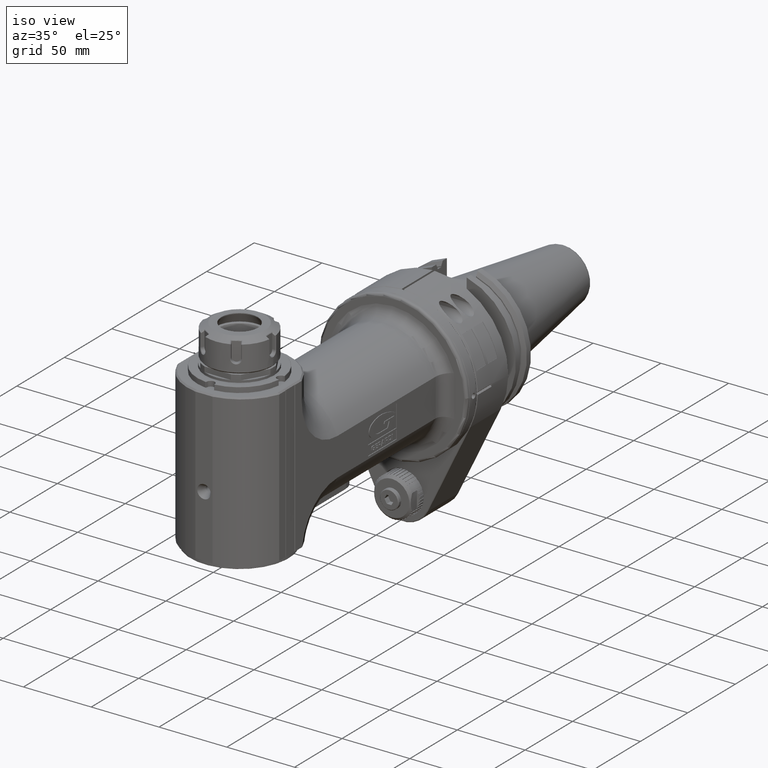
[diagram: clean part render]
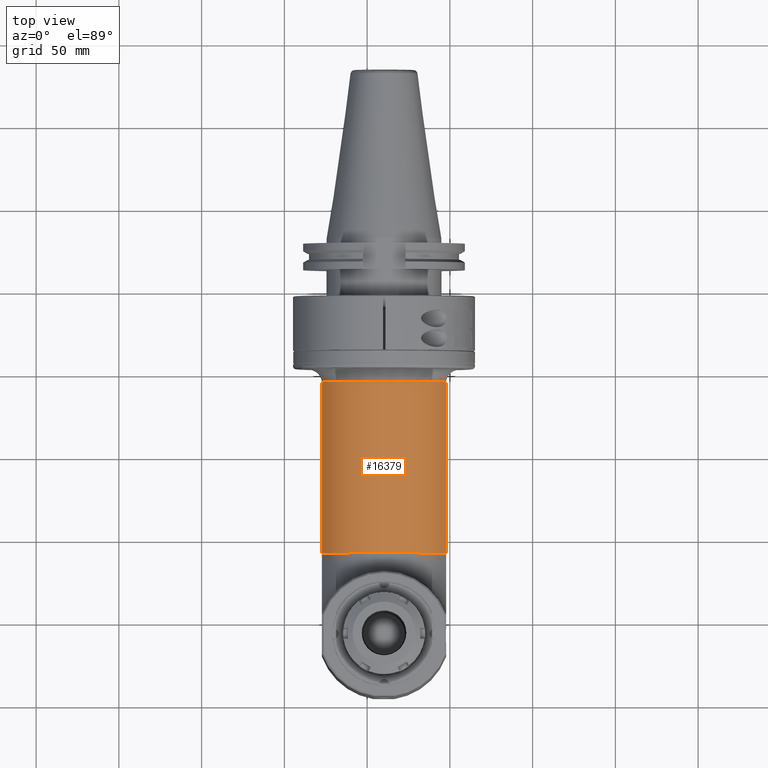
[diagram: tour spotlight — one face highlighted and labeled with its STEP entity id]
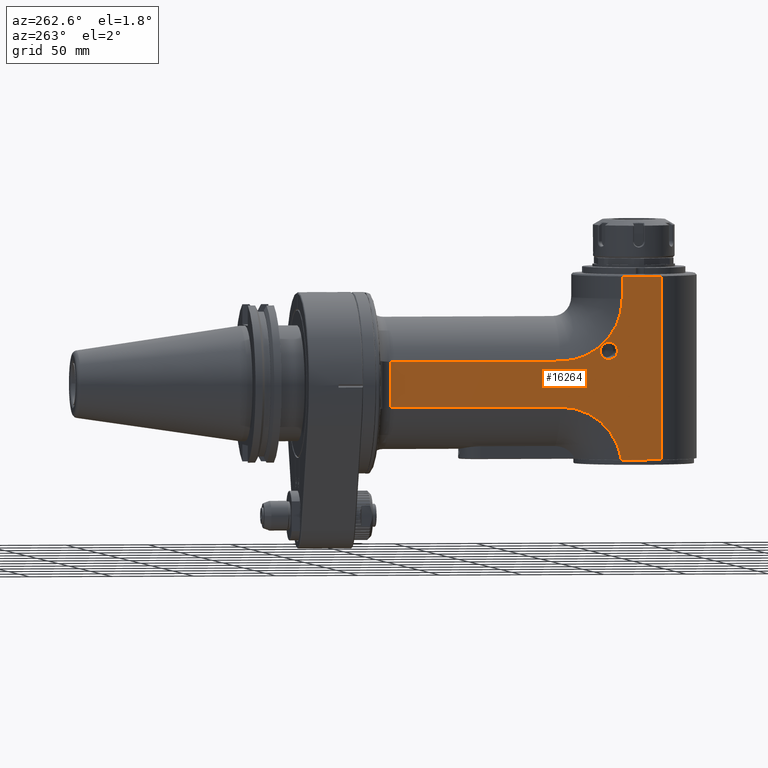
[diagram: tour spotlight — one face highlighted and labeled with its STEP entity id]
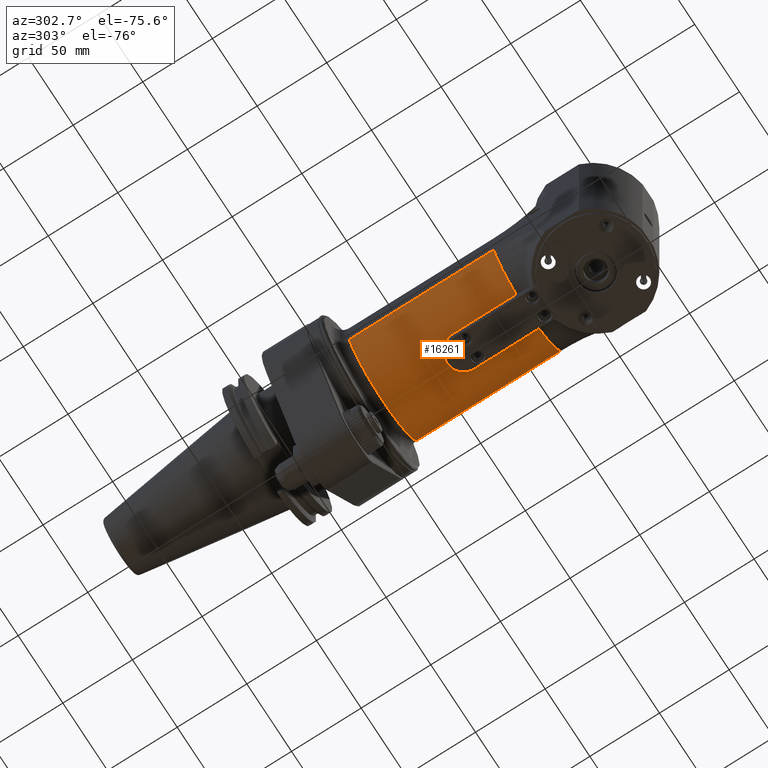
[diagram: tour spotlight — one face highlighted and labeled with its STEP entity id]
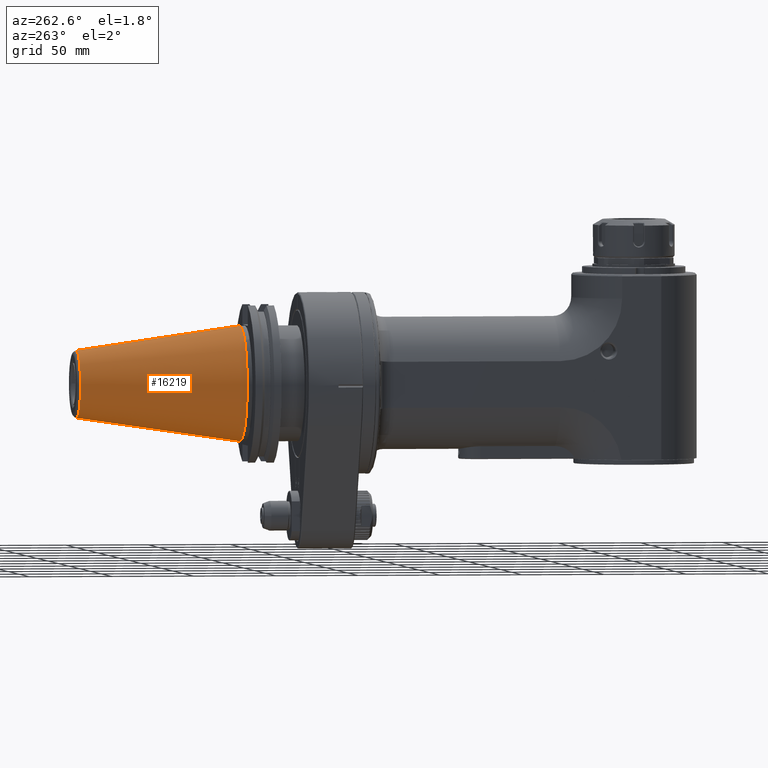
[diagram: tour spotlight — one face highlighted and labeled with its STEP entity id]
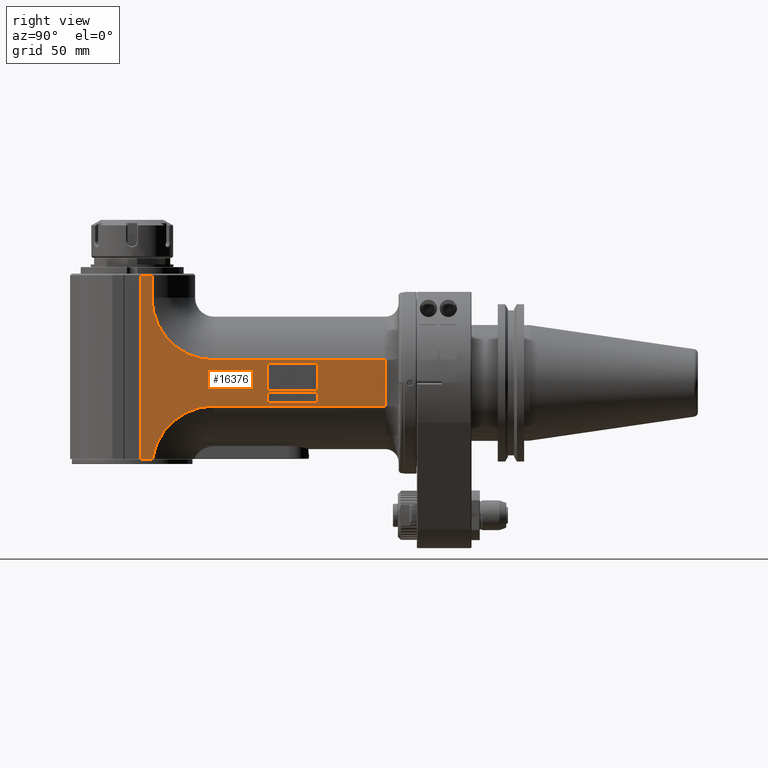
[diagram: tour spotlight — one face highlighted and labeled with its STEP entity id]
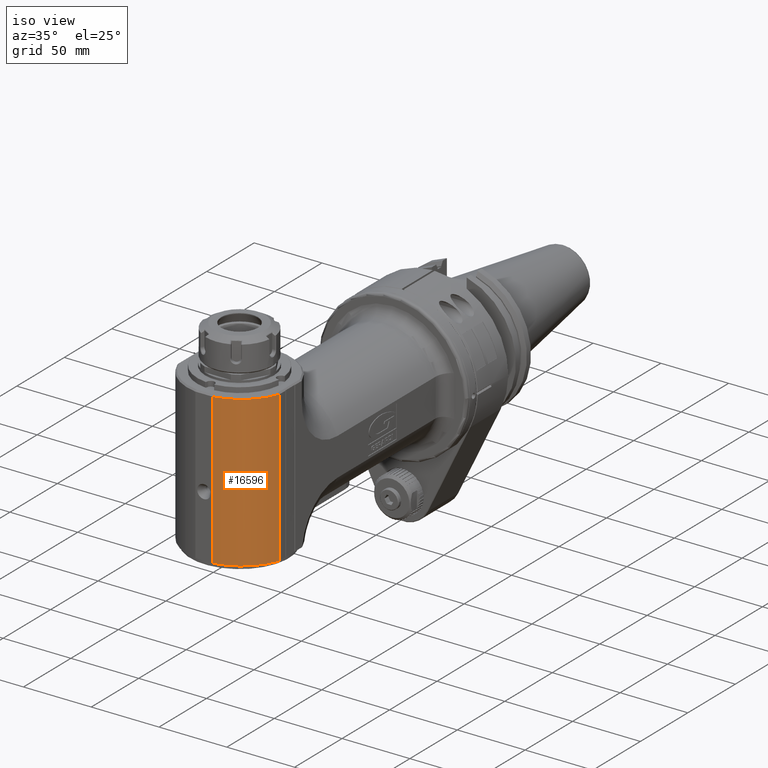
[diagram: tour spotlight — one face highlighted and labeled with its STEP entity id]
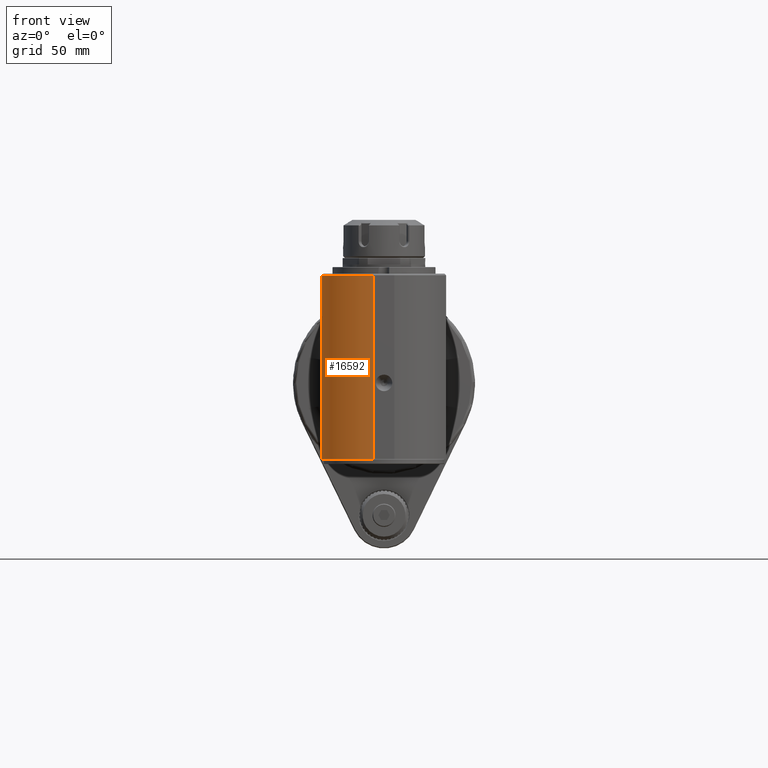
[diagram: tour spotlight — one face highlighted and labeled with its STEP entity id]
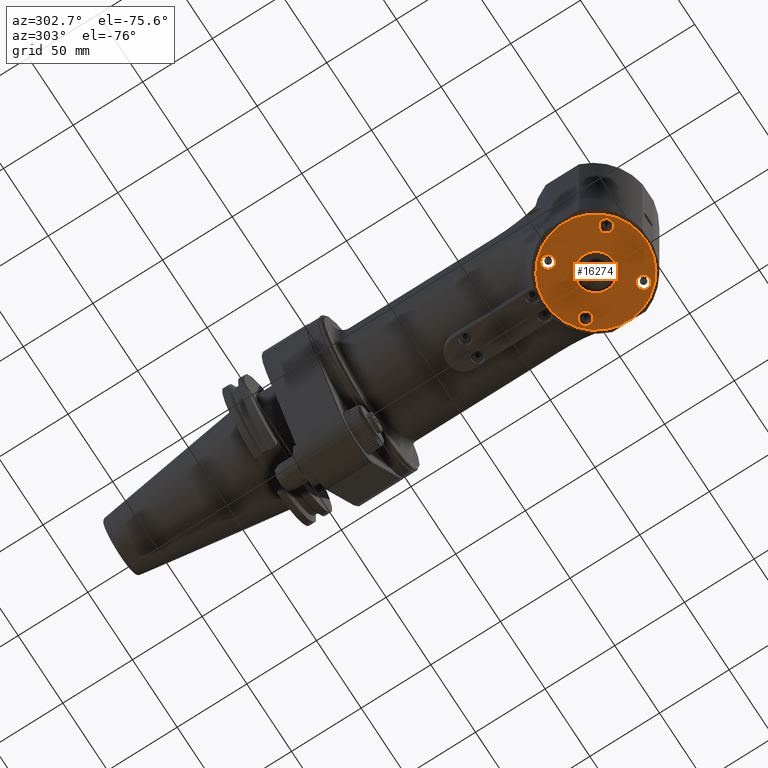
[diagram: tour spotlight — one face highlighted and labeled with its STEP entity id]
A machine part: a face-by-face anatomy tour. The part has 936 B-rep faces; the first image is the clean iso view, then the 8 largest visible faces are spotlighted one at a time (largest first), each with its STEP entity span.

Face 1 — top view, entity #16379. In plain terms, the highlighted cylindrical surface (partial cylindrical patch) has radius 40 mm, axis along (0, -1, -0).
Definition (entity closure, byte-faithful):
#1322=CIRCLE('',#17921,40.);
#1323=CIRCLE('',#17923,40.);
#1683=CYLINDRICAL_SURFACE('',#17922,40.);
#2293=FACE_OUTER_BOUND('',#3294,.T.);
#3294=EDGE_LOOP('',(#13401,#13402,#13403,#13404));
#4410=LINE('',#26817,#5732);
#4540=LINE('',#27791,#5862);
#5732=VECTOR('',#20885,103.5);
#5862=VECTOR('',#21531,103.5);
#7145=VERTEX_POINT('',#26814);
#7146=VERTEX_POINT('',#26816);
#7351=VERTEX_POINT('',#27788);
#7352=VERTEX_POINT('',#27790);
#9166=EDGE_CURVE('',#7146,#7145,#4410,.T.);
#9468=EDGE_CURVE('',#7351,#7352,#4540,.T.);
#9480=EDGE_CURVE('',#7352,#7145,#1322,.T.);
#9481=EDGE_CURVE('',#7351,#7146,#1323,.T.);
#13401=ORIENTED_EDGE('',*,*,#9468,.F.);
#13402=ORIENTED_EDGE('',*,*,#9481,.T.);
#13403=ORIENTED_EDGE('',*,*,#9166,.T.);
#13404=ORIENTED_EDGE('',*,*,#9480,.F.);
#16379=ADVANCED_FACE('',(#2293),#1683,.T.);
#17921=AXIS2_PLACEMENT_3D('',#27814,#21549,#21550);
#17922=AXIS2_PLACEMENT_3D('',#27815,#21551,#21552);
#17923=AXIS2_PLACEMENT_3D('',#27816,#21553,#21554);
#20885=DIRECTION('',(0.,-1.,0.));
#21531=DIRECTION('',(0.,-1.,0.));
#21549=DIRECTION('center_axis',(0.,-1.,0.));
#21550=DIRECTION('ref_axis',(0.937499999999992,0.,0.347985272676897));
#21551=DIRECTION('center_axis',(0.,-1.,0.));
#21552=DIRECTION('ref_axis',(-1.,0.,0.));
#21553=DIRECTION('center_axis',(0.,-1.,0.));
#21554=DIRECTION('ref_axis',(0.937499999999992,0.,0.347985272676897));
#26814=CARTESIAN_POINT('',(-37.5,49.5,13.91941090708));
#26816=CARTESIAN_POINT('',(-37.5,153.,13.91941090708));
#26817=CARTESIAN_POINT('',(-37.5,153.,13.91941090708));
#27788=CARTESIAN_POINT('',(37.5,153.,13.91941090708));
#27790=CARTESIAN_POINT('',(37.5,49.5,13.91941090708));
#27791=CARTESIAN_POINT('',(37.5,153.,13.91941090708));
#27814=CARTESIAN_POINT('Origin',(0.,49.5,0.));
#27815=CARTESIAN_POINT('Origin',(0.,206.85,0.));
#27816=CARTESIAN_POINT('Origin',(0.,153.,0.));

Face 2 — auxiliary view, entity #16264. In plain terms, the highlighted planar face has unit normal (1, 0, -0).
Definition (entity closure, byte-faithful):
#172=FACE_BOUND('',#3153,.T.);
#1181=CIRCLE('',#17656,37.58058909292);
#1182=CIRCLE('',#17658,37.58058909292);
#1183=CIRCLE('',#17659,5.250060322121);
#2178=FACE_OUTER_BOUND('',#3152,.T.);
#3152=EDGE_LOOP('',(#12806,#12807,#12808,#12809,#12810,#12811,#12812,#12813,
#12814));
#3153=EDGE_LOOP('',(#12815));
#4401=LINE('',#26754,#5723);
#4408=LINE('',#26811,#5730);
#4409=LINE('',#26813,#5731);
#4410=LINE('',#26817,#5732);
#4411=LINE('',#26818,#5733);
#4412=LINE('',#26820,#5734);
#4413=LINE('',#26821,#5735);
#5723=VECTOR('',#20860,103.5);
#5730=VECTOR('',#20881,10.);
#5731=VECTOR('',#20882,13.4999980109401);
#5732=VECTOR('',#20885,103.5);
#5733=VECTOR('',#20886,27.83882181415);
#5734=VECTOR('',#20887,24.24346873245);
#5735=VECTOR('',#20888,10.);
#7131=VERTEX_POINT('',#26751);
#7132=VERTEX_POINT('',#26753);
#7141=VERTEX_POINT('',#26792);
#7142=VERTEX_POINT('',#26809);
#7143=VERTEX_POINT('',#26810);
#7144=VERTEX_POINT('',#26812);
#7145=VERTEX_POINT('',#26814);
#7146=VERTEX_POINT('',#26816);
#7147=VERTEX_POINT('',#26819);
#7148=VERTEX_POINT('',#26822);
#9150=EDGE_CURVE('',#7132,#7131,#4401,.T.);
#9162=EDGE_CURVE('',#7131,#7141,#1181,.T.);
#9163=EDGE_CURVE('',#7142,#7143,#4408,.T.);
#9164=EDGE_CURVE('',#7144,#7142,#4409,.T.);
#9165=EDGE_CURVE('',#7145,#7144,#1182,.T.);
#9166=EDGE_CURVE('',#7146,#7145,#4410,.T.);
#9167=EDGE_CURVE('',#7132,#7146,#4411,.T.);
#9168=EDGE_CURVE('',#7141,#7147,#4412,.T.);
#9169=EDGE_CURVE('',#7143,#7147,#4413,.T.);
#9170=EDGE_CURVE('',#7148,#7148,#1183,.T.);
#12806=ORIENTED_EDGE('',*,*,#9163,.F.);
#12807=ORIENTED_EDGE('',*,*,#9164,.F.);
#12808=ORIENTED_EDGE('',*,*,#9165,.F.);
#12809=ORIENTED_EDGE('',*,*,#9166,.F.);
#12810=ORIENTED_EDGE('',*,*,#9167,.F.);
#12811=ORIENTED_EDGE('',*,*,#9150,.T.);
#12812=ORIENTED_EDGE('',*,*,#9162,.T.);
#12813=ORIENTED_EDGE('',*,*,#9168,.T.);
#12814=ORIENTED_EDGE('',*,*,#9169,.F.);
#12815=ORIENTED_EDGE('',*,*,#9170,.T.);
#15612=PLANE('',#17657);
#16264=ADVANCED_FACE('',(#2178,#172),#15612,.F.);
#17656=AXIS2_PLACEMENT_3D('',#26807,#20877,#20878);
#17657=AXIS2_PLACEMENT_3D('',#26808,#20879,#20880);
#17658=AXIS2_PLACEMENT_3D('',#26815,#20883,#20884);
#17659=AXIS2_PLACEMENT_3D('',#26823,#20889,#20890);
#20860=DIRECTION('',(0.,-1.,0.));
#20877=DIRECTION('center_axis',(1.,0.,0.));
#20878=DIRECTION('ref_axis',(0.,-1.210059133884E-14,1.));
#20879=DIRECTION('center_axis',(1.,0.,0.));
#20880=DIRECTION('ref_axis',(0.,1.,0.));
#20881=DIRECTION('',(0.,-1.,0.));
#20882=DIRECTION('',(1.22590523118099E-7,-4.54893183119996E-8,0.999999999999991));
#20883=DIRECTION('center_axis',(-1.,0.,0.));
#20884=DIRECTION('ref_axis',(0.,-2.609190007438E-14,-1.));
#20885=DIRECTION('',(0.,-1.,0.));
#20886=DIRECTION('',(0.,0.,1.));
#20887=DIRECTION('',(0.,-1.,0.));
#20888=DIRECTION('',(0.,0.,-1.));
#20889=DIRECTION('center_axis',(1.,0.,0.));
#20890=DIRECTION('ref_axis',(0.,1.,-1.353399184322E-14));
#26751=CARTESIAN_POINT('',(-37.5,49.5,-13.91941090708));
#26753=CARTESIAN_POINT('',(-37.5,153.,-13.91941090708));
#26754=CARTESIAN_POINT('',(-37.5,153.,-13.91941090708));
#26792=CARTESIAN_POINT('',(-37.5,12.32405782537,-46.));
#26807=CARTESIAN_POINT('Origin',(-37.5,49.5,-51.5));
#26808=CARTESIAN_POINT('Origin',(-37.5,-18.013,-67.1));
#26809=CARTESIAN_POINT('',(-37.5000031535924,11.9193903969521,64.9999925954276));
#26810=CARTESIAN_POINT('',(-37.5000115855401,-11.919346400708,64.9999768288556));
#26811=CARTESIAN_POINT('',(-37.5,-9.00649999999996,65.));
#26812=CARTESIAN_POINT('',(-37.5,11.91941090708,51.5));
#26813=CARTESIAN_POINT('',(-37.5,11.91941090708,51.5));
#26814=CARTESIAN_POINT('',(-37.5,49.5,13.91941090708));
#26815=CARTESIAN_POINT('Origin',(-37.5,49.5,51.5));
#26816=CARTESIAN_POINT('',(-37.5,153.,13.91941090708));
#26817=CARTESIAN_POINT('',(-37.5,153.,13.91941090708));
#26818=CARTESIAN_POINT('',(-37.5,153.,-13.91941090708));
#26819=CARTESIAN_POINT('',(-37.5,-11.91941090708,-46.));
#26820=CARTESIAN_POINT('',(-37.5,12.32405782537,-46.));
#26821=CARTESIAN_POINT('',(-37.5,-11.9194109070751,66.));
#26822=CARTESIAN_POINT('',(-37.4999999999983,20.,25.2500603221227));
#26823=CARTESIAN_POINT('Origin',(-37.5,20.,20.));

Face 3 — auxiliary view, entity #16261. In plain terms, the highlighted cylindrical surface (partial cylindrical patch) has radius 40 mm, axis along (0, -1, -0).
Definition (entity closure, byte-faithful):
#359=B_SPLINE_CURVE_WITH_KNOTS('',3,(#26763,#26764,#26765,#26766,#26767,
#26768,#26769,#26770,#26771,#26772,#26773,#26774,#26775,#26776,#26777,#26778,
#26779,#26780),.UNSPECIFIED.,.F.,.F.,(4,2,2,2,2,2,2,2,4),(-3.64051929255001,
-3.18538658776291,-2.73025388297581,-2.27525676462541,-1.820259646275,-1.3652625279246,
-0.9102654095742,-0.4551327047871,0.),.UNSPECIFIED.);
#1177=CIRCLE('',#17650,40.);
#1178=CIRCLE('',#17651,40.);
#1179=CIRCLE('',#17652,40.);
#1648=CYLINDRICAL_SURFACE('',#17649,40.);
#2175=FACE_OUTER_BOUND('',#3149,.T.);
#3149=EDGE_LOOP('',(#12788,#12789,#12790,#12791,#12792,#12793,#12794,#12795));
#4400=LINE('',#26750,#5722);
#4401=LINE('',#26754,#5723);
#4402=LINE('',#26758,#5724);
#4403=LINE('',#26762,#5725);
#5722=VECTOR('',#20857,45.5);
#5723=VECTOR('',#20860,103.5);
#5724=VECTOR('',#20863,103.5);
#5725=VECTOR('',#20866,45.5);
#7129=VERTEX_POINT('',#26748);
#7130=VERTEX_POINT('',#26749);
#7131=VERTEX_POINT('',#26751);
#7132=VERTEX_POINT('',#26753);
#7133=VERTEX_POINT('',#26755);
#7134=VERTEX_POINT('',#26757);
#7135=VERTEX_POINT('',#26759);
#7136=VERTEX_POINT('',#26761);
#9148=EDGE_CURVE('',#7129,#7130,#4400,.T.);
#9149=EDGE_CURVE('',#7131,#7130,#1177,.T.);
#9150=EDGE_CURVE('',#7132,#7131,#4401,.T.);
#9151=EDGE_CURVE('',#7132,#7133,#1178,.T.);
#9152=EDGE_CURVE('',#7133,#7134,#4402,.T.);
#9153=EDGE_CURVE('',#7135,#7134,#1179,.T.);
#9154=EDGE_CURVE('',#7136,#7135,#4403,.T.);
#9155=EDGE_CURVE('',#7136,#7129,#359,.T.);
#12788=ORIENTED_EDGE('',*,*,#9148,.T.);
#12789=ORIENTED_EDGE('',*,*,#9149,.F.);
#12790=ORIENTED_EDGE('',*,*,#9150,.F.);
#12791=ORIENTED_EDGE('',*,*,#9151,.T.);
#12792=ORIENTED_EDGE('',*,*,#9152,.T.);
#12793=ORIENTED_EDGE('',*,*,#9153,.F.);
#12794=ORIENTED_EDGE('',*,*,#9154,.F.);
#12795=ORIENTED_EDGE('',*,*,#9155,.T.);
#16261=ADVANCED_FACE('',(#2175),#1648,.T.);
#17649=AXIS2_PLACEMENT_3D('',#26747,#20855,#20856);
#17650=AXIS2_PLACEMENT_3D('',#26752,#20858,#20859);
#17651=AXIS2_PLACEMENT_3D('',#26756,#20861,#20862);
#17652=AXIS2_PLACEMENT_3D('',#26760,#20864,#20865);
#20855=DIRECTION('center_axis',(0.,-1.,0.));
#20856=DIRECTION('ref_axis',(-1.,0.,0.));
#20857=DIRECTION('',(0.,-1.,0.));
#20858=DIRECTION('center_axis',(0.,-1.,0.));
#20859=DIRECTION('ref_axis',(-0.937499999999992,0.,-0.347985272676897));
#20860=DIRECTION('',(0.,-1.,0.));
#20861=DIRECTION('center_axis',(0.,-1.,0.));
#20862=DIRECTION('ref_axis',(-0.937499999999992,0.,-0.347985272676897));
#20863=DIRECTION('',(0.,-1.,0.));
#20864=DIRECTION('center_axis',(0.,-1.,0.));
#20865=DIRECTION('ref_axis',(0.300000000000013,0.,-0.953939201416942));
#20866=DIRECTION('',(0.,-1.,0.));
#26747=CARTESIAN_POINT('Origin',(0.,206.85,0.));
#26748=CARTESIAN_POINT('',(-12.,95.,-38.15756805668));
#26749=CARTESIAN_POINT('',(-12.,49.5,-38.15756805668));
#26750=CARTESIAN_POINT('',(-12.,95.,-38.15756805668));
#26751=CARTESIAN_POINT('',(-37.5,49.5,-13.91941090708));
#26752=CARTESIAN_POINT('Origin',(0.,49.5,0.));
#26753=CARTESIAN_POINT('',(-37.5,153.,-13.91941090708));
#26754=CARTESIAN_POINT('',(-37.5,153.,-13.91941090708));
#26755=CARTESIAN_POINT('',(37.5,153.,-13.91941090708));
#26756=CARTESIAN_POINT('Origin',(0.,153.,0.));
#26757=CARTESIAN_POINT('',(37.5,49.5,-13.91941090708));
#26758=CARTESIAN_POINT('',(37.5,153.,-13.91941090708));
#26759=CARTESIAN_POINT('',(12.,49.5,-38.15756805668));
#26760=CARTESIAN_POINT('Origin',(0.,49.5,0.));
#26761=CARTESIAN_POINT('',(12.,95.,-38.15756805668));
#26762=CARTESIAN_POINT('',(12.,95.,-38.15756805668));
#26763=CARTESIAN_POINT('Ctrl Pts',(12.,95.,-38.1575680566778));
#26764=CARTESIAN_POINT('Ctrl Pts',(12.,96.517109015957,-38.1575680566778));
#26765=CARTESIAN_POINT('Ctrl Pts',(11.6948836643969,98.1284299417129,-38.2575175622995));
#26766=CARTESIAN_POINT('Ctrl Pts',(10.4674669046306,101.081902150865,-38.6113982441283));
#26767=CARTESIAN_POINT('Ctrl Pts',(9.5456212504585,102.424941498019,-38.8594700691606));
#26768=CARTESIAN_POINT('Ctrl Pts',(7.42525737886832,104.545305369609,-39.3197425045993));
#26769=CARTESIAN_POINT('Ctrl Pts',(6.08208967602489,105.467395628132,-39.5628477996032));
#26770=CARTESIAN_POINT('Ctrl Pts',(3.12815086992751,106.694992986043,-39.9052053355133));
#26771=CARTESIAN_POINT('Ctrl Pts',(1.51665706116801,107.,-40.));
#26772=CARTESIAN_POINT('Ctrl Pts',(-1.51665706116801,107.,-40.));
#26773=CARTESIAN_POINT('Ctrl Pts',(-3.12815086992754,106.694992986043,-39.9052053355133));
#26774=CARTESIAN_POINT('Ctrl Pts',(-6.08208967602491,105.467395628132,-39.5628477996032));
#26775=CARTESIAN_POINT('Ctrl Pts',(-7.42525737886832,104.545305369609,-39.3197425045993));
#26776=CARTESIAN_POINT('Ctrl Pts',(-9.5456212504585,102.424941498019,-38.8594700691606));
#26777=CARTESIAN_POINT('Ctrl Pts',(-10.4674669046306,101.081902150865,-38.6113982441283));
#26778=CARTESIAN_POINT('Ctrl Pts',(-11.6948836643969,98.1284299417129,-38.2575175622995));
#26779=CARTESIAN_POINT('Ctrl Pts',(-12.,96.517109015957,-38.1575680566778));
#26780=CARTESIAN_POINT('Ctrl Pts',(-12.,95.,-38.1575680566778));

Face 4 — auxiliary view, entity #16219. In plain terms, the highlighted conical surface has half-angle 8.3 deg.
Definition (entity closure, byte-faithful):
#683=CONICAL_SURFACE('',#17567,27.65552420652,0.144862327915529);
#1135=CIRCLE('',#17564,20.38604841304);
#1137=CIRCLE('',#17566,20.38604841304);
#1138=CIRCLE('',#17568,34.925);
#2133=FACE_OUTER_BOUND('',#3101,.T.);
#3101=EDGE_LOOP('',(#12584,#12585,#12586,#12587,#12588));
#4349=LINE('',#26283,#5671);
#5671=VECTOR('',#20644,27.65552420652);
#7057=VERTEX_POINT('',#26275);
#7058=VERTEX_POINT('',#26276);
#7059=VERTEX_POINT('',#26281);
#9041=EDGE_CURVE('',#7057,#7058,#1135,.T.);
#9043=EDGE_CURVE('',#7058,#7057,#1137,.T.);
#9044=EDGE_CURVE('',#7059,#7059,#1138,.T.);
#9045=EDGE_CURVE('',#7059,#7058,#4349,.T.);
#12584=ORIENTED_EDGE('',*,*,#9044,.F.);
#12585=ORIENTED_EDGE('',*,*,#9045,.T.);
#12586=ORIENTED_EDGE('',*,*,#9043,.T.);
#12587=ORIENTED_EDGE('',*,*,#9041,.T.);
#12588=ORIENTED_EDGE('',*,*,#9045,.F.);
#16219=ADVANCED_FACE('',(#2133),#683,.T.);
#17564=AXIS2_PLACEMENT_3D('',#26277,#20634,#20635);
#17566=AXIS2_PLACEMENT_3D('',#26279,#20638,#20639);
#17567=AXIS2_PLACEMENT_3D('',#26280,#20640,#20641);
#17568=AXIS2_PLACEMENT_3D('',#26282,#20642,#20643);
#20634=DIRECTION('center_axis',(0.,-1.,0.));
#20635=DIRECTION('ref_axis',(0.00108059556212205,0.,0.999999416156445));
#20638=DIRECTION('center_axis',(0.,-1.,0.));
#20639=DIRECTION('ref_axis',(0.00108059556212205,0.,0.999999416156445));
#20640=DIRECTION('center_axis',(0.,-1.,0.));
#20641=DIRECTION('ref_axis',(0.,0.,1.));
#20642=DIRECTION('center_axis',(0.,-1.,0.));
#20643=DIRECTION('ref_axis',(0.,0.,-1.));
#20644=DIRECTION('',(-1.76785359492914E-17,0.989525789068969,0.144356201000973));
#26275=CARTESIAN_POINT('',(0.0220290734443338,167.6608905025,20.386036510777));
#26276=CARTESIAN_POINT('',(2.49657089362968E-15,167.660890502501,-20.3860484130436));
#26277=CARTESIAN_POINT('Origin',(0.,167.6608905025,-1.480248809205E-14));
#26279=CARTESIAN_POINT('Origin',(0.,167.6608905025,-1.480248809205E-14));
#26280=CARTESIAN_POINT('Origin',(0.,117.83044525125,-1.480248809205E-14));
#26281=CARTESIAN_POINT('',(0.,68.,-34.925));
#26282=CARTESIAN_POINT('Origin',(0.,68.,-1.480248809205E-14));
#26283=CARTESIAN_POINT('',(3.38682491982569E-15,117.83044525125,-27.65552420652));

Face 5 — right view, entity #16376. In plain terms, the highlighted planar face has unit normal (1, 0, -0).
Definition (entity closure, byte-faithful):
#197=FACE_BOUND('',#3290,.T.);
#198=FACE_BOUND('',#3291,.T.);
#1319=CIRCLE('',#17915,37.58058909292);
#1320=CIRCLE('',#17917,37.58058909292);
#2290=FACE_OUTER_BOUND('',#3289,.T.);
#3289=EDGE_LOOP('',(#13376,#13377,#13378,#13379,#13380,#13381,#13382,#13383,
#13384));
#3290=EDGE_LOOP('',(#13385,#13386,#13387,#13388));
#3291=EDGE_LOOP('',(#13389,#13390,#13391,#13392));
#4402=LINE('',#26758,#5724);
#4426=LINE('',#26886,#5748);
#4433=LINE('',#26907,#5755);
#4436=LINE('',#26932,#5758);
#4539=LINE('',#27789,#5861);
#4540=LINE('',#27791,#5862);
#4541=LINE('',#27794,#5863);
#4542=LINE('',#27797,#5864);
#4543=LINE('',#27799,#5865);
#4544=LINE('',#27801,#5866);
#4545=LINE('',#27802,#5867);
#4546=LINE('',#27805,#5868);
#4547=LINE('',#27807,#5869);
#4548=LINE('',#27809,#5870);
#4549=LINE('',#27810,#5871);
#5724=VECTOR('',#20863,103.5);
#5748=VECTOR('',#20935,10.);
#5755=VECTOR('',#20944,111.);
#5758=VECTOR('',#20953,7.324057825372);
#5861=VECTOR('',#21530,27.83882181415);
#5862=VECTOR('',#21531,103.5);
#5863=VECTOR('',#21534,13.4999981228601);
#5864=VECTOR('',#21535,16.51976851128);
#5865=VECTOR('',#21536,30.01663922375);
#5866=VECTOR('',#21537,16.51976851128);
#5867=VECTOR('',#21538,30.01663922375);
#5868=VECTOR('',#21539,6.349203301807);
#5869=VECTOR('',#21540,30.04358740776);
#5870=VECTOR('',#21541,6.349203301807);
#5871=VECTOR('',#21542,30.04358740776);
#7133=VERTEX_POINT('',#26755);
#7134=VERTEX_POINT('',#26757);
#7152=VERTEX_POINT('',#26837);
#7172=VERTEX_POINT('',#26883);
#7179=VERTEX_POINT('',#26904);
#7185=VERTEX_POINT('',#26917);
#7351=VERTEX_POINT('',#27788);
#7352=VERTEX_POINT('',#27790);
#7353=VERTEX_POINT('',#27792);
#7354=VERTEX_POINT('',#27795);
#7355=VERTEX_POINT('',#27796);
#7356=VERTEX_POINT('',#27798);
#7357=VERTEX_POINT('',#27800);
#7358=VERTEX_POINT('',#27803);
#7359=VERTEX_POINT('',#27804);
#7360=VERTEX_POINT('',#27806);
#7361=VERTEX_POINT('',#27808);
#9152=EDGE_CURVE('',#7133,#7134,#4402,.T.);
#9198=EDGE_CURVE('',#7172,#7152,#4426,.T.);
#9206=EDGE_CURVE('',#7179,#7172,#4433,.T.);
#9212=EDGE_CURVE('',#7185,#7179,#4436,.T.);
#9466=EDGE_CURVE('',#7134,#7185,#1319,.T.);
#9467=EDGE_CURVE('',#7133,#7351,#4539,.T.);
#9468=EDGE_CURVE('',#7351,#7352,#4540,.T.);
#9469=EDGE_CURVE('',#7352,#7353,#1320,.T.);
#9470=EDGE_CURVE('',#7353,#7152,#4541,.T.);
#9471=EDGE_CURVE('',#7354,#7355,#4542,.T.);
#9472=EDGE_CURVE('',#7356,#7354,#4543,.T.);
#9473=EDGE_CURVE('',#7357,#7356,#4544,.T.);
#9474=EDGE_CURVE('',#7355,#7357,#4545,.T.);
#9475=EDGE_CURVE('',#7358,#7359,#4546,.T.);
#9476=EDGE_CURVE('',#7360,#7358,#4547,.T.);
#9477=EDGE_CURVE('',#7361,#7360,#4548,.T.);
#9478=EDGE_CURVE('',#7359,#7361,#4549,.T.);
#13376=ORIENTED_EDGE('',*,*,#9206,.F.);
#13377=ORIENTED_EDGE('',*,*,#9212,.F.);
#13378=ORIENTED_EDGE('',*,*,#9466,.F.);
#13379=ORIENTED_EDGE('',*,*,#9152,.F.);
#13380=ORIENTED_EDGE('',*,*,#9467,.T.);
#13381=ORIENTED_EDGE('',*,*,#9468,.T.);
#13382=ORIENTED_EDGE('',*,*,#9469,.T.);
#13383=ORIENTED_EDGE('',*,*,#9470,.T.);
#13384=ORIENTED_EDGE('',*,*,#9198,.F.);
#13385=ORIENTED_EDGE('',*,*,#9471,.F.);
#13386=ORIENTED_EDGE('',*,*,#9472,.F.);
#13387=ORIENTED_EDGE('',*,*,#9473,.F.);
#13388=ORIENTED_EDGE('',*,*,#9474,.F.);
#13389=ORIENTED_EDGE('',*,*,#9475,.F.);
#13390=ORIENTED_EDGE('',*,*,#9476,.F.);
#13391=ORIENTED_EDGE('',*,*,#9477,.F.);
#13392=ORIENTED_EDGE('',*,*,#9478,.F.);
#15644=PLANE('',#17916);
#16376=ADVANCED_FACE('',(#2290,#197,#198),#15644,.T.);
#17915=AXIS2_PLACEMENT_3D('',#27786,#21526,#21527);
#17916=AXIS2_PLACEMENT_3D('',#27787,#21528,#21529);
#17917=AXIS2_PLACEMENT_3D('',#27793,#21532,#21533);
#20863=DIRECTION('',(0.,-1.,0.));
#20935=DIRECTION('',(0.,1.,0.));
#20944=DIRECTION('',(0.,0.,1.));
#20953=DIRECTION('',(0.,-1.,0.));
#21526=DIRECTION('center_axis',(1.,0.,0.));
#21527=DIRECTION('ref_axis',(0.,-1.210059133884E-14,1.));
#21528=DIRECTION('center_axis',(1.,0.,0.));
#21529=DIRECTION('ref_axis',(0.,1.,0.));
#21530=DIRECTION('',(0.,0.,1.));
#21531=DIRECTION('',(0.,-1.,0.));
#21532=DIRECTION('center_axis',(-1.,0.,0.));
#21533=DIRECTION('ref_axis',(0.,0.,-1.));
#21534=DIRECTION('',(-1.30358121104699E-7,-4.83867656897595E-8,0.99999999999999));
#21535=DIRECTION('',(0.,0.,-1.));
#21536=DIRECTION('',(0.,-1.,0.));
#21537=DIRECTION('',(0.,0.,1.));
#21538=DIRECTION('',(0.,1.,0.));
#21539=DIRECTION('',(0.,0.,-1.));
#21540=DIRECTION('',(0.,-1.,0.));
#21541=DIRECTION('',(0.,0.,1.));
#21542=DIRECTION('',(0.,1.,0.));
#26755=CARTESIAN_POINT('',(37.5,153.,-13.91941090708));
#26757=CARTESIAN_POINT('',(37.5,49.5,-13.91941090708));
#26758=CARTESIAN_POINT('',(37.5,153.,-13.91941090708));
#26837=CARTESIAN_POINT('',(37.5000031227525,11.9193903815777,64.9999926020201));
#26883=CARTESIAN_POINT('',(37.5,5.,65.));
#26886=CARTESIAN_POINT('',(37.5,-9.0065,65.));
#26904=CARTESIAN_POINT('',(37.5,5.,-46.));
#26907=CARTESIAN_POINT('',(37.5,5.,-46.));
#26917=CARTESIAN_POINT('',(37.5,12.32405782537,-46.));
#26932=CARTESIAN_POINT('',(37.5,12.32405782537,-46.));
#27786=CARTESIAN_POINT('Origin',(37.5,49.5,-51.5));
#27787=CARTESIAN_POINT('Origin',(37.5,-18.013,-67.1));
#27788=CARTESIAN_POINT('',(37.5,153.,13.91941090708));
#27789=CARTESIAN_POINT('',(37.5,153.,-13.91941090708));
#27790=CARTESIAN_POINT('',(37.5,49.5,13.91941090708));
#27791=CARTESIAN_POINT('',(37.5,153.,13.91941090708));
#27792=CARTESIAN_POINT('',(37.5,11.91941090708,51.5));
#27793=CARTESIAN_POINT('Origin',(37.5,49.5,51.5));
#27794=CARTESIAN_POINT('',(37.5,11.91941090708,51.5));
#27795=CARTESIAN_POINT('',(37.5,81.98336077625,11.90006998381));
#27796=CARTESIAN_POINT('',(37.5,81.98336077625,-4.619698527469));
#27797=CARTESIAN_POINT('',(37.5,81.98336077625,11.90006998381));
#27798=CARTESIAN_POINT('',(37.5,112.,11.90006998381));
#27799=CARTESIAN_POINT('',(37.5,112.,11.90006998381));
#27800=CARTESIAN_POINT('',(37.5,112.,-4.619698527469));
#27801=CARTESIAN_POINT('',(37.5,112.,-4.619698527469));
#27802=CARTESIAN_POINT('',(37.5,81.98336077625,-4.619698527469));
#27803=CARTESIAN_POINT('',(37.5,81.94167288687,-5.750796698193));
#27804=CARTESIAN_POINT('',(37.5,81.94167288687,-12.1));
#27805=CARTESIAN_POINT('',(37.5,81.94167288687,-5.750796698193));
#27806=CARTESIAN_POINT('',(37.5,111.9852602946,-5.750796698193));
#27807=CARTESIAN_POINT('',(37.5,111.9852602946,-5.750796698193));
#27808=CARTESIAN_POINT('',(37.5,111.9852602946,-12.1));
#27809=CARTESIAN_POINT('',(37.5,111.9852602946,-12.1));
#27810=CARTESIAN_POINT('',(37.5,81.94167288687,-12.1));

Face 6 — iso view, entity #16596. In plain terms, the highlighted cylindrical surface (partial cylindrical patch) has radius 40 mm, axis along (-0, 0, -1).
Definition (entity closure, byte-faithful):
#1198=CIRCLE('',#17680,40.);
#1425=CIRCLE('',#18248,40.);
#1717=CYLINDRICAL_SURFACE('',#18249,40.);
#2510=FACE_OUTER_BOUND('',#3534,.T.);
#3534=EDGE_LOOP('',(#14511,#14512,#14513,#14514));
#4881=LINE('',#29708,#6203);
#4882=LINE('',#29709,#6204);
#6203=VECTOR('',#22538,10.);
#6204=VECTOR('',#22539,10.);
#7174=VERTEX_POINT('',#26887);
#7190=VERTEX_POINT('',#26941);
#7191=VERTEX_POINT('',#26943);
#7716=VERTEX_POINT('',#29697);
#9218=EDGE_CURVE('',#7191,#7190,#1198,.T.);
#10025=EDGE_CURVE('',#7174,#7716,#1425,.T.);
#10026=EDGE_CURVE('',#7716,#7191,#4881,.T.);
#10027=EDGE_CURVE('',#7174,#7190,#4882,.T.);
#14511=ORIENTED_EDGE('',*,*,#10025,.T.);
#14512=ORIENTED_EDGE('',*,*,#10026,.T.);
#14513=ORIENTED_EDGE('',*,*,#9218,.T.);
#14514=ORIENTED_EDGE('',*,*,#10027,.F.);
#16596=ADVANCED_FACE('',(#2510),#1717,.T.);
#17680=AXIS2_PLACEMENT_3D('',#26944,#20959,#20960);
#18248=AXIS2_PLACEMENT_3D('',#29706,#22534,#22535);
#18249=AXIS2_PLACEMENT_3D('',#29707,#22536,#22537);
#20959=DIRECTION('center_axis',(0.,0.,1.));
#20960=DIRECTION('ref_axis',(0.1576190026615,-0.987499999999997,0.));
#22534=DIRECTION('center_axis',(0.,0.,-1.));
#22535=DIRECTION('ref_axis',(0.937499999999992,-0.347985272676897,0.));
#22536=DIRECTION('center_axis',(0.,0.,-1.));
#22537=DIRECTION('ref_axis',(-1.,0.,0.));
#22538=DIRECTION('',(0.,0.,-1.));
#22539=DIRECTION('',(0.,0.,-1.));
#26887=CARTESIAN_POINT('',(37.4999928846129,-11.919401207414,64.9999776133729));
#26941=CARTESIAN_POINT('',(37.5,-11.91941090708,-46.));
#26943=CARTESIAN_POINT('',(6.304760106459,-37.5,-46.));
#26944=CARTESIAN_POINT('Origin',(0.,2.,-46.));
#29697=CARTESIAN_POINT('',(6.30476010498658,-37.4999901119275,64.9999746119677));
#29706=CARTESIAN_POINT('Origin',(3.907985146681E-13,1.999999999999,64.99992422193));
#29707=CARTESIAN_POINT('Origin',(0.,2.,66.));
#29708=CARTESIAN_POINT('',(6.30476010645924,-37.5,66.));
#29709=CARTESIAN_POINT('',(37.5,-11.9194109070751,66.));

Face 7 — front view, entity #16592. In plain terms, the highlighted cylindrical surface (partial cylindrical patch) has radius 40 mm, axis along (-0, 0, -1).
Definition (entity closure, byte-faithful):
#1199=CIRCLE('',#17681,40.);
#1424=CIRCLE('',#18244,39.99999999999);
#1716=CYLINDRICAL_SURFACE('',#18243,40.);
#2506=FACE_OUTER_BOUND('',#3530,.T.);
#3530=EDGE_LOOP('',(#14495,#14496,#14497,#14498));
#4413=LINE('',#26821,#5735);
#4879=LINE('',#29688,#6201);
#5735=VECTOR('',#20888,10.);
#6201=VECTOR('',#22526,110.9999904884);
#7143=VERTEX_POINT('',#26810);
#7147=VERTEX_POINT('',#26819);
#7192=VERTEX_POINT('',#26945);
#7715=VERTEX_POINT('',#29686);
#9169=EDGE_CURVE('',#7143,#7147,#4413,.T.);
#9220=EDGE_CURVE('',#7147,#7192,#1199,.T.);
#10020=EDGE_CURVE('',#7715,#7143,#1424,.T.);
#10021=EDGE_CURVE('',#7715,#7192,#4879,.T.);
#14495=ORIENTED_EDGE('',*,*,#10020,.T.);
#14496=ORIENTED_EDGE('',*,*,#9169,.T.);
#14497=ORIENTED_EDGE('',*,*,#9220,.T.);
#14498=ORIENTED_EDGE('',*,*,#10021,.F.);
#16592=ADVANCED_FACE('',(#2506),#1716,.T.);
#17681=AXIS2_PLACEMENT_3D('',#26947,#20962,#20963);
#18243=AXIS2_PLACEMENT_3D('',#29685,#22522,#22523);
#18244=AXIS2_PLACEMENT_3D('',#29687,#22524,#22525);
#20888=DIRECTION('',(0.,0.,-1.));
#20962=DIRECTION('center_axis',(0.,0.,1.));
#20963=DIRECTION('ref_axis',(-0.937499999999992,-0.347985272676897,0.));
#22522=DIRECTION('center_axis',(0.,0.,-1.));
#22523=DIRECTION('ref_axis',(-1.,0.,0.));
#22524=DIRECTION('center_axis',(0.,0.,-1.));
#22525=DIRECTION('ref_axis',(-0.157619002661402,-0.987500000000013,0.));
#22526=DIRECTION('',(-2.945114442927E-9,-1.845153556752E-8,-1.));
#26810=CARTESIAN_POINT('',(-37.5000115855401,-11.919346400708,64.9999768288556));
#26819=CARTESIAN_POINT('',(-37.5,-11.91941090708,-46.));
#26821=CARTESIAN_POINT('',(-37.5,-11.9194109070751,66.));
#26945=CARTESIAN_POINT('',(-6.304760106459,-37.5,-46.));
#26947=CARTESIAN_POINT('Origin',(0.,2.,-46.));
#29685=CARTESIAN_POINT('Origin',(0.,2.,66.));
#29686=CARTESIAN_POINT('',(-6.3047512052677,-37.5000004875664,64.9999773518838));
#29687=CARTESIAN_POINT('Origin',(-5.217160027319E-12,1.999999999997,64.99995365745));
#29688=CARTESIAN_POINT('',(-6.304759779552,-37.49999795188,64.99999048841));

Face 8 — auxiliary view, entity #16274. In plain terms, the highlighted planar face has unit normal (-0, 0, -1).
Definition (entity closure, byte-faithful):
#174=FACE_BOUND('',#3165,.T.);
#175=FACE_BOUND('',#3166,.T.);
#176=FACE_BOUND('',#3167,.T.);
#177=FACE_BOUND('',#3168,.T.);
#178=FACE_BOUND('',#3169,.T.);
#1207=CIRCLE('',#17692,36.29998815272);
#1208=CIRCLE('',#17694,4.5);
#1209=CIRCLE('',#17695,4.5);
#1210=CIRCLE('',#17696,4.5);
#1211=CIRCLE('',#17697,4.5);
#1212=CIRCLE('',#17698,12.9499378203);
#2188=FACE_OUTER_BOUND('',#3164,.T.);
#3164=EDGE_LOOP('',(#12897));
#3165=EDGE_LOOP('',(#12898));
#3166=EDGE_LOOP('',(#12899));
#3167=EDGE_LOOP('',(#12900));
#3168=EDGE_LOOP('',(#12901));
#3169=EDGE_LOOP('',(#12902));
#7198=VERTEX_POINT('',#26965);
#7199=VERTEX_POINT('',#26969);
#7200=VERTEX_POINT('',#26971);
#7201=VERTEX_POINT('',#26973);
#7202=VERTEX_POINT('',#26975);
#7203=VERTEX_POINT('',#26977);
#9231=EDGE_CURVE('',#7198,#7198,#1207,.T.);
#9232=EDGE_CURVE('',#7199,#7199,#1208,.T.);
#9233=EDGE_CURVE('',#7200,#7200,#1209,.T.);
#9234=EDGE_CURVE('',#7201,#7201,#1210,.T.);
#9235=EDGE_CURVE('',#7202,#7202,#1211,.T.);
#9236=EDGE_CURVE('',#7203,#7203,#1212,.T.);
#12897=ORIENTED_EDGE('',*,*,#9231,.T.);
#12898=ORIENTED_EDGE('',*,*,#9232,.T.);
#12899=ORIENTED_EDGE('',*,*,#9233,.T.);
#12900=ORIENTED_EDGE('',*,*,#9234,.T.);
#12901=ORIENTED_EDGE('',*,*,#9235,.T.);
#12902=ORIENTED_EDGE('',*,*,#9236,.F.);
#15618=PLANE('',#17693);
#16274=ADVANCED_FACE('',(#2188,#174,#175,#176,#177,#178),#15618,.T.);
#17692=AXIS2_PLACEMENT_3D('',#26967,#20987,#20988);
#17693=AXIS2_PLACEMENT_3D('',#26968,#20989,#20990);
#17694=AXIS2_PLACEMENT_3D('',#26970,#20991,#20992);
#17695=AXIS2_PLACEMENT_3D('',#26972,#20993,#20994);
#17696=AXIS2_PLACEMENT_3D('',#26974,#20995,#20996);
#17697=AXIS2_PLACEMENT_3D('',#26976,#20997,#20998);
#17698=AXIS2_PLACEMENT_3D('',#26978,#20999,#21000);
#20987=DIRECTION('center_axis',(0.,0.,-1.));
#20988=DIRECTION('ref_axis',(0.707106781186597,-0.707106781186498,0.));
#20989=DIRECTION('center_axis',(0.,0.,-1.));
#20990=DIRECTION('ref_axis',(-0.707106781186548,0.707106781186548,0.));
#20991=DIRECTION('center_axis',(0.,0.,1.));
#20992=DIRECTION('ref_axis',(-0.707106781186548,-0.707106781186548,0.));
#20993=DIRECTION('center_axis',(0.,0.,1.));
#20994=DIRECTION('ref_axis',(-0.707106781186548,-0.707106781186548,0.));
#20995=DIRECTION('center_axis',(0.,0.,1.));
#20996=DIRECTION('ref_axis',(-0.707106781186548,-0.707106781186548,0.));
#20997=DIRECTION('center_axis',(0.,0.,1.));
#20998=DIRECTION('ref_axis',(-0.707106781186548,-0.707106781186548,0.));
#20999=DIRECTION('center_axis',(0.,0.,-1.));
#21000=DIRECTION('ref_axis',(-0.707106781186498,0.707106781186598,0.));
#26965=CARTESIAN_POINT('',(-25.66796777978,25.66796777978,-49.));
#26967=CARTESIAN_POINT('Origin',(6.508731393343E-13,-1.31171512958E-12,
-49.));
#26968=CARTESIAN_POINT('Origin',(1.843406509932E-14,0.,-49.));
#26969=CARTESIAN_POINT('',(-24.0416305603395,17.6776695296605,-49.));
#26970=CARTESIAN_POINT('Origin',(-20.859650045,20.859650045,-49.));
#26971=CARTESIAN_POINT('',(-24.0416305603395,-24.0416305603395,-49.));
#26972=CARTESIAN_POINT('Origin',(-20.859650045,-20.859650045,-49.));
#26973=CARTESIAN_POINT('',(17.6776695296605,-24.0416305603395,-49.));
#26974=CARTESIAN_POINT('Origin',(20.859650045,-20.859650045,-49.));
#26975=CARTESIAN_POINT('',(17.6776695296605,17.6776695296605,-49.));
#26976=CARTESIAN_POINT('Origin',(20.859650045,20.859650045,-49.));
#26977=CARTESIAN_POINT('',(-9.15698884867694,9.15698884867686,-49.000000000002));
#26978=CARTESIAN_POINT('Origin',(-8.442674300583E-14,0.,-49.));